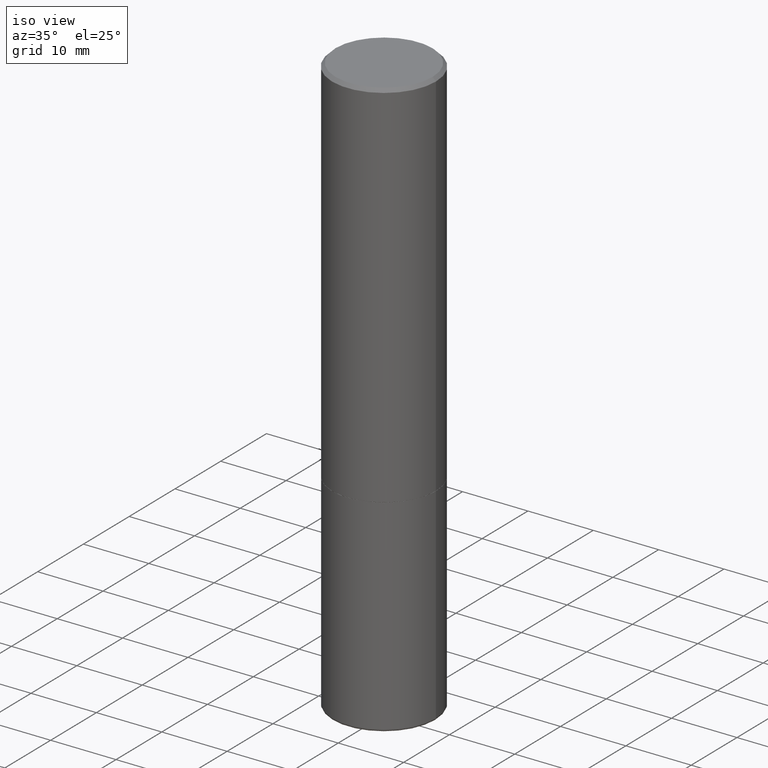
[diagram: clean part render]
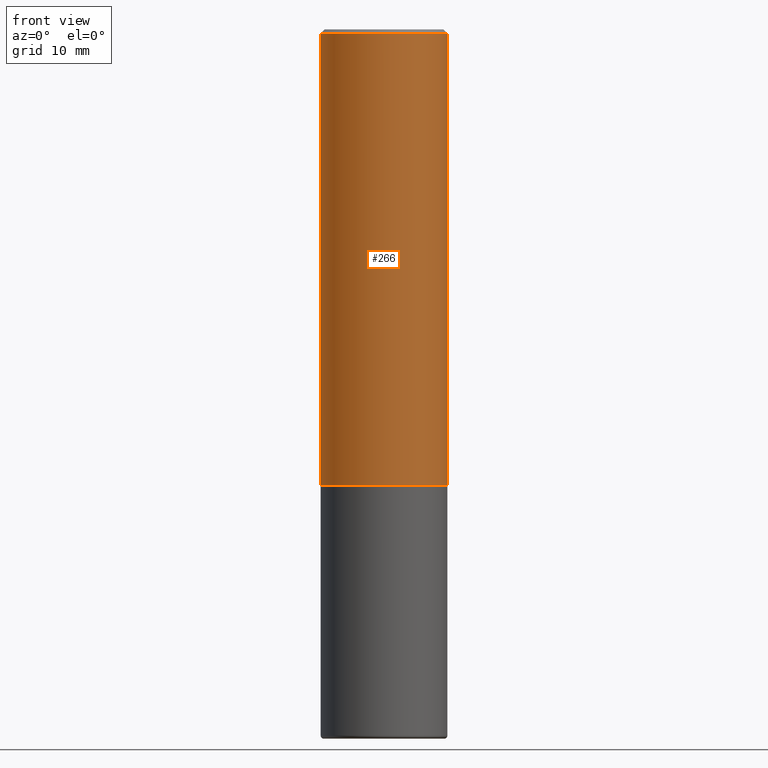
[diagram: tour spotlight — one face highlighted and labeled with its STEP entity id]
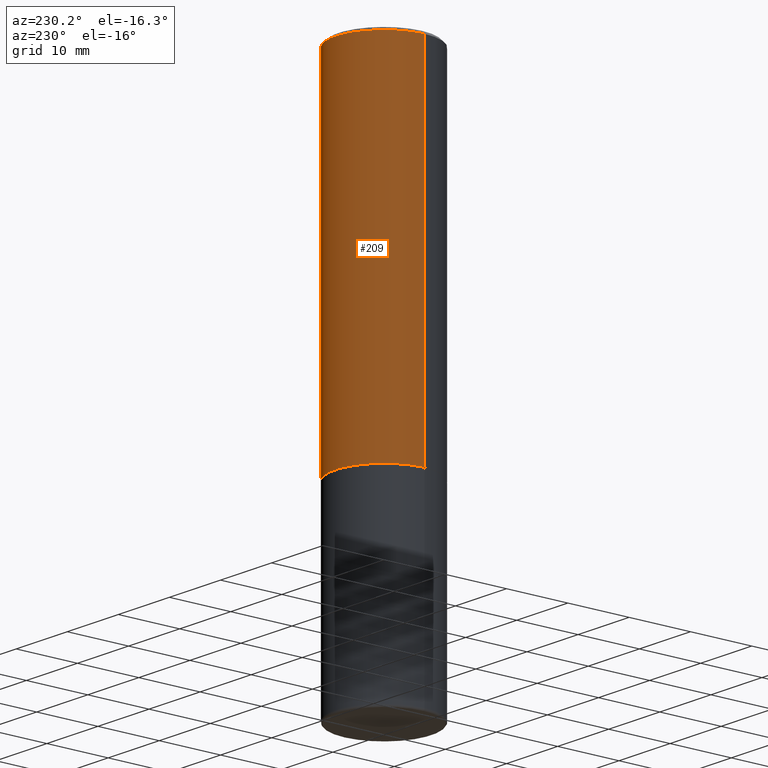
[diagram: tour spotlight — one face highlighted and labeled with its STEP entity id]
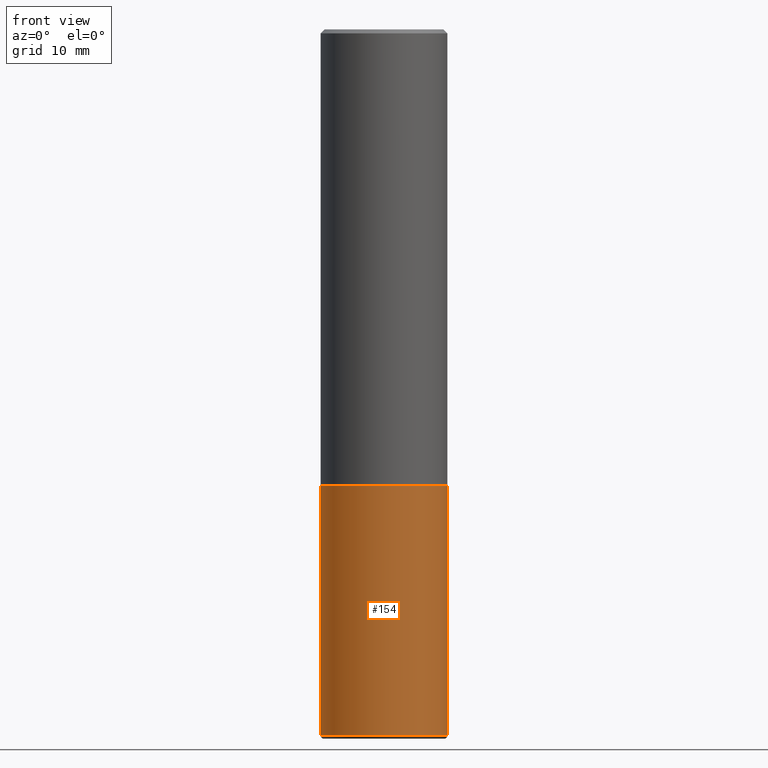
[diagram: tour spotlight — one face highlighted and labeled with its STEP entity id]
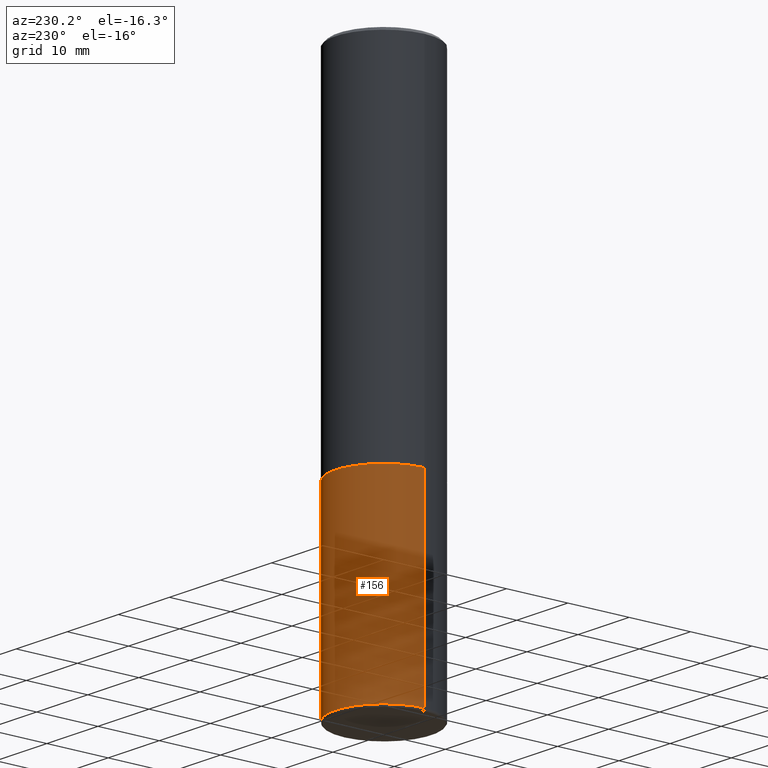
[diagram: tour spotlight — one face highlighted and labeled with its STEP entity id]
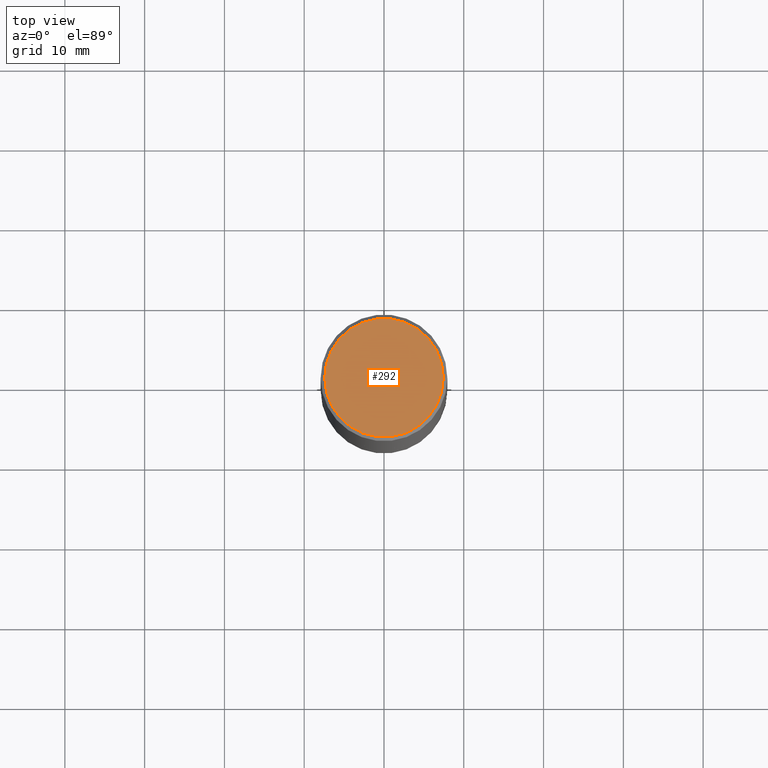
[diagram: tour spotlight — one face highlighted and labeled with its STEP entity id]
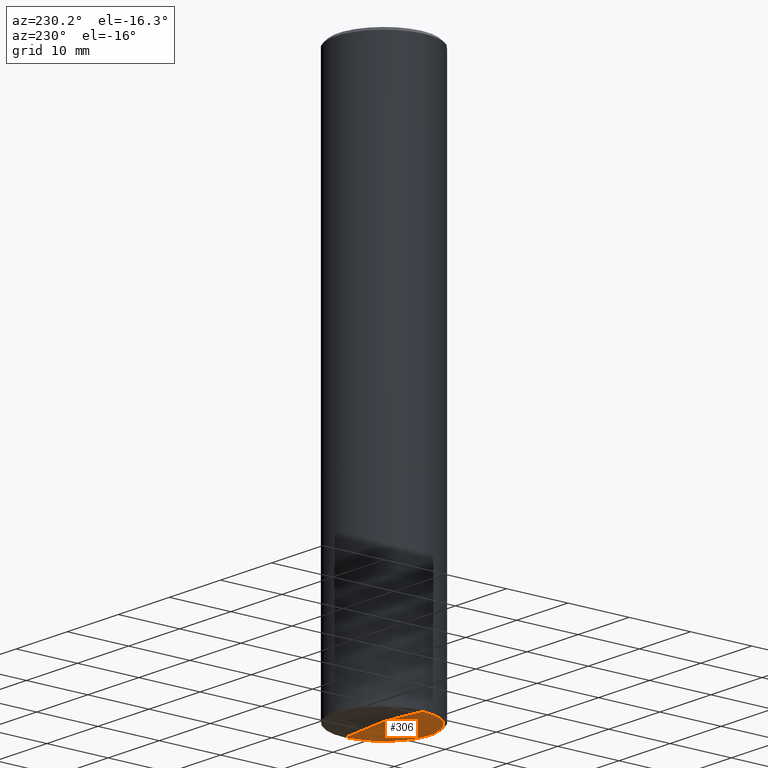
[diagram: tour spotlight — one face highlighted and labeled with its STEP entity id]
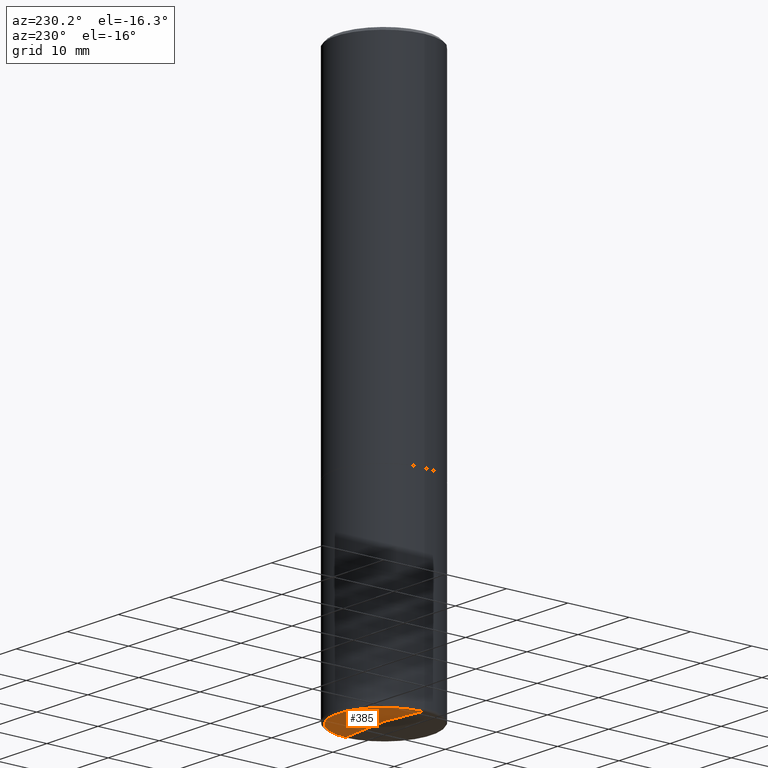
[diagram: tour spotlight — one face highlighted and labeled with its STEP entity id]
A machine part: a face-by-face anatomy tour. The part has 15 B-rep faces; the first image is the clean iso view, then the 7 largest visible faces are spotlighted one at a time (largest first), each with its STEP entity span.

Face 1 — front view, entity #266. In plain terms, the highlighted cylindrical surface (partial cylindrical patch) has radius 7.9375 mm, axis along (-0, 0, 1).
Definition (entity closure, byte-faithful):
#2 = EDGE_CURVE ( 'NONE', #92, #56, #296, .T. ) ;
#3 = CARTESIAN_POINT ( 'NONE',  ( 5.499859345110370619E-29, -7.852341531058232286E-15, -2.248999999999999222 ) ) ;
#12 = CYLINDRICAL_SURFACE ( 'NONE', #93, 0.3124999999999998890 ) ;
#16 = CARTESIAN_POINT ( 'NONE',  ( 0.3124999999999998890, -2.182175836776957558E-15, 1.523805242436229235E-29 ) ) ;
#20 = VECTOR ( 'NONE', #422, 39.37007874015748143 ) ;
#28 = EDGE_CURVE ( 'NONE', #336, #124, #406, .T. ) ;
#44 = CARTESIAN_POINT ( 'NONE',  ( 4.890937612370276662E-31, -6.982962677686296539E-17, -0.02000000000000001776 ) ) ;
#56 = VERTEX_POINT ( 'NONE', #172 ) ;
#66 = EDGE_CURVE ( 'NONE', #336, #92, #242, .T. ) ;
#67 = ORIENTED_EDGE ( 'NONE', *, *, #254, .T. ) ;
#73 = CARTESIAN_POINT ( 'NONE',  ( -0.3124999999999998890, 2.220446049250312292E-15, -1.537167215704657391E-29 ) ) ;
#92 = VERTEX_POINT ( 'NONE', #399 ) ;
#93 = AXIS2_PLACEMENT_3D ( 'NONE', #175, #316, #325 ) ;
#124 = VERTEX_POINT ( 'NONE', #397 ) ;
#126 = ORIENTED_EDGE ( 'NONE', *, *, #2, .F. ) ;
#172 = CARTESIAN_POINT ( 'NONE',  ( 0.3124999999999998335, -2.213735251080465334E-15, -0.02000000000000001776 ) ) ;
#175 = CARTESIAN_POINT ( 'NONE',  ( 0.000000000000000000, 0.000000000000000000, 0.000000000000000000 ) ) ;
#190 = AXIS2_PLACEMENT_3D ( 'NONE', #3, #414, #283 ) ;
#228 = DIRECTION ( 'NONE',  ( -2.445468806185136597E-29, 3.491481338843145583E-15, 1.000000000000000000 ) ) ;
#229 = EDGE_LOOP ( 'NONE', ( #328, #403, #67, #126 ) ) ;
#242 = LINE ( 'NONE', #73, #250 ) ;
#250 = VECTOR ( 'NONE', #436, 39.37007874015748143 ) ;
#254 = EDGE_CURVE ( 'NONE', #124, #56, #362, .T. ) ;
#266 = ADVANCED_FACE ( 'NONE', ( #289 ), #12, .T. ) ;
#283 = DIRECTION ( 'NONE',  ( 1.000000000000000000, -6.982962677686269077E-15, 0.000000000000000000 ) ) ;
#287 = CARTESIAN_POINT ( 'NONE',  ( -0.3125000000000000000, -1.740639529667232739E-15, -2.248999999999999222 ) ) ;
#289 = FACE_OUTER_BOUND ( 'NONE', #229, .T. ) ;
#296 = CIRCLE ( 'NONE', #387, 0.3124999999999998335 ) ;
#316 = DIRECTION ( 'NONE',  ( -2.445468806185136597E-29, 3.491481338843145583E-15, 1.000000000000000000 ) ) ;
#325 = DIRECTION ( 'NONE',  ( 1.000000000000000000, -6.982962677686266711E-15, 4.876176775795935232E-29 ) ) ;
#328 = ORIENTED_EDGE ( 'NONE', *, *, #66, .F. ) ;
#336 = VERTEX_POINT ( 'NONE', #287 ) ;
#354 = DIRECTION ( 'NONE',  ( 1.000000000000000000, -6.982962677686266711E-15, 0.000000000000000000 ) ) ;
#362 = LINE ( 'NONE', #16, #20 ) ;
#387 = AXIS2_PLACEMENT_3D ( 'NONE', #44, #228, #354 ) ;
#397 = CARTESIAN_POINT ( 'NONE',  ( 0.3125000000000000000, -1.003451736783519063E-14, -2.248999999999999222 ) ) ;
#399 = CARTESIAN_POINT ( 'NONE',  ( -0.3124999999999998335, 2.112346210000093866E-15, -0.02000000000000001776 ) ) ;
#403 = ORIENTED_EDGE ( 'NONE', *, *, #28, .T. ) ;
#406 = CIRCLE ( 'NONE', #190, 0.3125000000000000000 ) ;
#414 = DIRECTION ( 'NONE',  ( -2.445468806185136597E-29, 3.491481338843145583E-15, 1.000000000000000000 ) ) ;
#422 = DIRECTION ( 'NONE',  ( -2.445468806185136877E-29, 3.491481338843145188E-15, 1.000000000000000000 ) ) ;
#436 = DIRECTION ( 'NONE',  ( -2.445468806185136877E-29, 3.491481338843145188E-15, 1.000000000000000000 ) ) ;

Face 2 — auxiliary view, entity #209. In plain terms, the highlighted cylindrical surface (partial cylindrical patch) has radius 7.9375 mm, axis along (-0, 0, 1).
Definition (entity closure, byte-faithful):
#16 = CARTESIAN_POINT ( 'NONE',  ( 0.3124999999999998890, -2.182175836776957558E-15, 1.523805242436229235E-29 ) ) ;
#20 = VECTOR ( 'NONE', #422, 39.37007874015748143 ) ;
#56 = VERTEX_POINT ( 'NONE', #172 ) ;
#59 = CYLINDRICAL_SURFACE ( 'NONE', #304, 0.3124999999999998890 ) ;
#66 = EDGE_CURVE ( 'NONE', #336, #92, #242, .T. ) ;
#73 = CARTESIAN_POINT ( 'NONE',  ( -0.3124999999999998890, 2.220446049250312292E-15, -1.537167215704657391E-29 ) ) ;
#91 = AXIS2_PLACEMENT_3D ( 'NONE', #348, #291, #117 ) ;
#92 = VERTEX_POINT ( 'NONE', #399 ) ;
#97 = AXIS2_PLACEMENT_3D ( 'NONE', #310, #231, #188 ) ;
#102 = ORIENTED_EDGE ( 'NONE', *, *, #254, .F. ) ;
#117 = DIRECTION ( 'NONE',  ( 1.000000000000000000, -6.982962677686269077E-15, 0.000000000000000000 ) ) ;
#124 = VERTEX_POINT ( 'NONE', #397 ) ;
#172 = CARTESIAN_POINT ( 'NONE',  ( 0.3124999999999998335, -2.213735251080465334E-15, -0.02000000000000001776 ) ) ;
#187 = DIRECTION ( 'NONE',  ( -2.445468806185136597E-29, 3.491481338843145583E-15, 1.000000000000000000 ) ) ;
#188 = DIRECTION ( 'NONE',  ( 1.000000000000000000, -6.982962677686266711E-15, 0.000000000000000000 ) ) ;
#196 = EDGE_CURVE ( 'NONE', #124, #336, #417, .T. ) ;
#199 = ORIENTED_EDGE ( 'NONE', *, *, #66, .T. ) ;
#201 = EDGE_LOOP ( 'NONE', ( #240, #199, #429, #102 ) ) ;
#207 = CIRCLE ( 'NONE', #97, 0.3124999999999998335 ) ;
#209 = ADVANCED_FACE ( 'NONE', ( #424 ), #59, .T. ) ;
#231 = DIRECTION ( 'NONE',  ( -2.445468806185136597E-29, 3.491481338843145583E-15, 1.000000000000000000 ) ) ;
#240 = ORIENTED_EDGE ( 'NONE', *, *, #196, .T. ) ;
#242 = LINE ( 'NONE', #73, #250 ) ;
#248 = EDGE_CURVE ( 'NONE', #56, #92, #207, .T. ) ;
#250 = VECTOR ( 'NONE', #436, 39.37007874015748143 ) ;
#254 = EDGE_CURVE ( 'NONE', #124, #56, #362, .T. ) ;
#287 = CARTESIAN_POINT ( 'NONE',  ( -0.3125000000000000000, -1.740639529667232739E-15, -2.248999999999999222 ) ) ;
#291 = DIRECTION ( 'NONE',  ( -2.445468806185136597E-29, 3.491481338843145583E-15, 1.000000000000000000 ) ) ;
#304 = AXIS2_PLACEMENT_3D ( 'NONE', #419, #187, #318 ) ;
#310 = CARTESIAN_POINT ( 'NONE',  ( 4.890937612370276662E-31, -6.982962677686296539E-17, -0.02000000000000001776 ) ) ;
#318 = DIRECTION ( 'NONE',  ( 1.000000000000000000, -6.982962677686266711E-15, 4.876176775795935232E-29 ) ) ;
#336 = VERTEX_POINT ( 'NONE', #287 ) ;
#348 = CARTESIAN_POINT ( 'NONE',  ( 5.499859345110370619E-29, -7.852341531058232286E-15, -2.248999999999999222 ) ) ;
#362 = LINE ( 'NONE', #16, #20 ) ;
#397 = CARTESIAN_POINT ( 'NONE',  ( 0.3125000000000000000, -1.003451736783519063E-14, -2.248999999999999222 ) ) ;
#399 = CARTESIAN_POINT ( 'NONE',  ( -0.3124999999999998335, 2.112346210000093866E-15, -0.02000000000000001776 ) ) ;
#417 = CIRCLE ( 'NONE', #91, 0.3125000000000000000 ) ;
#419 = CARTESIAN_POINT ( 'NONE',  ( 0.000000000000000000, 0.000000000000000000, 0.000000000000000000 ) ) ;
#422 = DIRECTION ( 'NONE',  ( -2.445468806185136877E-29, 3.491481338843145188E-15, 1.000000000000000000 ) ) ;
#424 = FACE_OUTER_BOUND ( 'NONE', #201, .T. ) ;
#429 = ORIENTED_EDGE ( 'NONE', *, *, #248, .F. ) ;
#436 = DIRECTION ( 'NONE',  ( -2.445468806185136877E-29, 3.491481338843145188E-15, 1.000000000000000000 ) ) ;

Face 3 — front view, entity #154. In plain terms, the highlighted cylindrical surface (partial cylindrical patch) has radius 7.9375 mm, axis along (-0, 0, 1).
Definition (entity closure, byte-faithful):
#11 = CIRCLE ( 'NONE', #86, 0.3125000000000002776 ) ;
#35 = ORIENTED_EDGE ( 'NONE', *, *, #163, .F. ) ;
#40 = CARTESIAN_POINT ( 'NONE',  ( -0.3125000000000000000, -7.791412577036126966E-15, -2.249999999999999556 ) ) ;
#43 = CYLINDRICAL_SURFACE ( 'NONE', #109, 0.3125000000000001665 ) ;
#55 = DIRECTION ( 'NONE',  ( 1.000000000000000000, -6.982962677686265133E-15, 0.000000000000000000 ) ) ;
#71 = ORIENTED_EDGE ( 'NONE', *, *, #203, .F. ) ;
#86 = AXIS2_PLACEMENT_3D ( 'NONE', #181, #415, #320 ) ;
#94 = DIRECTION ( 'NONE',  ( -2.445468806185136597E-29, 3.491481338843145583E-15, 1.000000000000000000 ) ) ;
#95 = CARTESIAN_POINT ( 'NONE',  ( -0.3125000000000001665, 2.220446049250314264E-15, -1.537167215704658792E-29 ) ) ;
#109 = AXIS2_PLACEMENT_3D ( 'NONE', #183, #113, #319 ) ;
#113 = DIRECTION ( 'NONE',  ( -2.445468806185136597E-29, 3.491481338843145583E-15, 1.000000000000000000 ) ) ;
#125 = ORIENTED_EDGE ( 'NONE', *, *, #294, .T. ) ;
#133 = CARTESIAN_POINT ( 'NONE',  ( 0.3125000000000002776, -1.435006007695276788E-14, -3.485020556978680073 ) ) ;
#141 = CARTESIAN_POINT ( 'NONE',  ( -0.3125000000000002776, -7.791412577036125389E-15, -3.485020556978680073 ) ) ;
#154 = ADVANCED_FACE ( 'NONE', ( #423 ), #43, .T. ) ;
#157 = CIRCLE ( 'NONE', #197, 0.3125000000000000000 ) ;
#158 = VECTOR ( 'NONE', #349, 39.37007874015748143 ) ;
#163 = EDGE_CURVE ( 'NONE', #324, #341, #157, .T. ) ;
#173 = DIRECTION ( 'NONE',  ( -2.445468806185136877E-29, 3.491481338843145188E-15, 1.000000000000000000 ) ) ;
#181 = CARTESIAN_POINT ( 'NONE',  ( 8.522509061005312396E-29, -1.216788424017580638E-14, -3.485020556978680073 ) ) ;
#183 = CARTESIAN_POINT ( 'NONE',  ( 0.000000000000000000, 0.000000000000000000, 0.000000000000000000 ) ) ;
#197 = AXIS2_PLACEMENT_3D ( 'NONE', #262, #94, #55 ) ;
#203 = EDGE_CURVE ( 'NONE', #210, #324, #230, .T. ) ;
#210 = VERTEX_POINT ( 'NONE', #141 ) ;
#230 = LINE ( 'NONE', #95, #331 ) ;
#249 = CARTESIAN_POINT ( 'NONE',  ( 0.3125000000000000000, -1.003800884917403364E-14, -2.249999999999999556 ) ) ;
#261 = CARTESIAN_POINT ( 'NONE',  ( 0.3125000000000001665, -2.182175836776959530E-15, 1.523805242436230636E-29 ) ) ;
#262 = CARTESIAN_POINT ( 'NONE',  ( 5.502304813916556222E-29, -7.855833012397075293E-15, -2.249999999999999556 ) ) ;
#294 = EDGE_CURVE ( 'NONE', #367, #341, #442, .T. ) ;
#302 = EDGE_CURVE ( 'NONE', #210, #367, #11, .T. ) ;
#319 = DIRECTION ( 'NONE',  ( 1.000000000000000000, -6.982962677686266711E-15, 4.876176775795935232E-29 ) ) ;
#320 = DIRECTION ( 'NONE',  ( 1.000000000000000000, -6.982962677686269077E-15, 0.000000000000000000 ) ) ;
#324 = VERTEX_POINT ( 'NONE', #40 ) ;
#331 = VECTOR ( 'NONE', #173, 39.37007874015748143 ) ;
#341 = VERTEX_POINT ( 'NONE', #249 ) ;
#349 = DIRECTION ( 'NONE',  ( -2.445468806185136877E-29, 3.491481338843145188E-15, 1.000000000000000000 ) ) ;
#367 = VERTEX_POINT ( 'NONE', #133 ) ;
#372 = ORIENTED_EDGE ( 'NONE', *, *, #302, .T. ) ;
#415 = DIRECTION ( 'NONE',  ( -2.445468806185136597E-29, 3.491481338843145583E-15, 1.000000000000000000 ) ) ;
#423 = FACE_OUTER_BOUND ( 'NONE', #435, .T. ) ;
#435 = EDGE_LOOP ( 'NONE', ( #71, #372, #125, #35 ) ) ;
#442 = LINE ( 'NONE', #261, #158 ) ;

Face 4 — auxiliary view, entity #156. In plain terms, the highlighted cylindrical surface (partial cylindrical patch) has radius 7.9375 mm, axis along (-0, 0, 1).
Definition (entity closure, byte-faithful):
#40 = CARTESIAN_POINT ( 'NONE',  ( -0.3125000000000000000, -7.791412577036126966E-15, -2.249999999999999556 ) ) ;
#68 = DIRECTION ( 'NONE',  ( -2.445468806185136597E-29, 3.491481338843145583E-15, 1.000000000000000000 ) ) ;
#83 = DIRECTION ( 'NONE',  ( -2.445468806185136597E-29, 3.491481338843145583E-15, 1.000000000000000000 ) ) ;
#87 = ORIENTED_EDGE ( 'NONE', *, *, #294, .F. ) ;
#95 = CARTESIAN_POINT ( 'NONE',  ( -0.3125000000000001665, 2.220446049250314264E-15, -1.537167215704658792E-29 ) ) ;
#133 = CARTESIAN_POINT ( 'NONE',  ( 0.3125000000000002776, -1.435006007695276788E-14, -3.485020556978680073 ) ) ;
#141 = CARTESIAN_POINT ( 'NONE',  ( -0.3125000000000002776, -7.791412577036125389E-15, -3.485020556978680073 ) ) ;
#146 = CARTESIAN_POINT ( 'NONE',  ( 0.000000000000000000, 0.000000000000000000, 0.000000000000000000 ) ) ;
#156 = ADVANCED_FACE ( 'NONE', ( #359 ), #390, .T. ) ;
#158 = VECTOR ( 'NONE', #349, 39.37007874015748143 ) ;
#173 = DIRECTION ( 'NONE',  ( -2.445468806185136877E-29, 3.491481338843145188E-15, 1.000000000000000000 ) ) ;
#198 = AXIS2_PLACEMENT_3D ( 'NONE', #263, #68, #332 ) ;
#203 = EDGE_CURVE ( 'NONE', #210, #324, #230, .T. ) ;
#210 = VERTEX_POINT ( 'NONE', #141 ) ;
#230 = LINE ( 'NONE', #95, #331 ) ;
#235 = EDGE_CURVE ( 'NONE', #367, #210, #239, .T. ) ;
#239 = CIRCLE ( 'NONE', #317, 0.3125000000000002776 ) ;
#249 = CARTESIAN_POINT ( 'NONE',  ( 0.3125000000000000000, -1.003800884917403364E-14, -2.249999999999999556 ) ) ;
#253 = DIRECTION ( 'NONE',  ( -2.445468806185136597E-29, 3.491481338843145583E-15, 1.000000000000000000 ) ) ;
#261 = CARTESIAN_POINT ( 'NONE',  ( 0.3125000000000001665, -2.182175836776959530E-15, 1.523805242436230636E-29 ) ) ;
#263 = CARTESIAN_POINT ( 'NONE',  ( 5.502304813916556222E-29, -7.855833012397075293E-15, -2.249999999999999556 ) ) ;
#275 = AXIS2_PLACEMENT_3D ( 'NONE', #146, #253, #427 ) ;
#285 = CIRCLE ( 'NONE', #198, 0.3125000000000000000 ) ;
#294 = EDGE_CURVE ( 'NONE', #367, #341, #442, .T. ) ;
#317 = AXIS2_PLACEMENT_3D ( 'NONE', #410, #83, #346 ) ;
#324 = VERTEX_POINT ( 'NONE', #40 ) ;
#331 = VECTOR ( 'NONE', #173, 39.37007874015748143 ) ;
#332 = DIRECTION ( 'NONE',  ( 1.000000000000000000, -6.982962677686265133E-15, 0.000000000000000000 ) ) ;
#335 = ORIENTED_EDGE ( 'NONE', *, *, #437, .F. ) ;
#341 = VERTEX_POINT ( 'NONE', #249 ) ;
#346 = DIRECTION ( 'NONE',  ( 1.000000000000000000, -6.982962677686269077E-15, 0.000000000000000000 ) ) ;
#349 = DIRECTION ( 'NONE',  ( -2.445468806185136877E-29, 3.491481338843145188E-15, 1.000000000000000000 ) ) ;
#359 = FACE_OUTER_BOUND ( 'NONE', #369, .T. ) ;
#367 = VERTEX_POINT ( 'NONE', #133 ) ;
#369 = EDGE_LOOP ( 'NONE', ( #401, #439, #335, #87 ) ) ;
#390 = CYLINDRICAL_SURFACE ( 'NONE', #275, 0.3125000000000001665 ) ;
#401 = ORIENTED_EDGE ( 'NONE', *, *, #235, .T. ) ;
#410 = CARTESIAN_POINT ( 'NONE',  ( 8.522509061005312396E-29, -1.216788424017580638E-14, -3.485020556978680073 ) ) ;
#427 = DIRECTION ( 'NONE',  ( 1.000000000000000000, -6.982962677686266711E-15, 4.876176775795935232E-29 ) ) ;
#437 = EDGE_CURVE ( 'NONE', #341, #324, #285, .T. ) ;
#439 = ORIENTED_EDGE ( 'NONE', *, *, #203, .T. ) ;
#442 = LINE ( 'NONE', #261, #158 ) ;

Face 5 — top view, entity #292. In plain terms, the highlighted planar face has unit normal (0, -0, -1).
Definition (entity closure, byte-faithful):
#24 = CARTESIAN_POINT ( 'NONE',  ( -1.043851414335219820E-46, 1.490343170380447200E-32, 4.268512490100411279E-18 ) ) ;
#25 = EDGE_LOOP ( 'NONE', ( #160, #432 ) ) ;
#82 = DIRECTION ( 'NONE',  ( -2.445468806185136597E-29, 3.491481338843145583E-15, 1.000000000000000000 ) ) ;
#114 = AXIS2_PLACEMENT_3D ( 'NONE', #192, #193, #264 ) ;
#119 = CARTESIAN_POINT ( 'NONE',  ( 0.2924999999999998157, -2.110215457714318748E-15, 4.268512490114932791E-18 ) ) ;
#129 = EDGE_CURVE ( 'NONE', #184, #269, #290, .T. ) ;
#147 = CARTESIAN_POINT ( 'NONE',  ( -0.2924999999999998157, 2.077431396611662611E-15, 4.268512490086005323E-18 ) ) ;
#160 = ORIENTED_EDGE ( 'NONE', *, *, #129, .T. ) ;
#180 = AXIS2_PLACEMENT_3D ( 'NONE', #438, #339, #301 ) ;
#184 = VERTEX_POINT ( 'NONE', #147 ) ;
#192 = CARTESIAN_POINT ( 'NONE',  ( -1.043851414335219820E-46, 1.490343170380447200E-32, 4.268512490100411279E-18 ) ) ;
#193 = DIRECTION ( 'NONE',  ( -2.445468806185136597E-29, 3.491481338843145583E-15, 1.000000000000000000 ) ) ;
#214 = DIRECTION ( 'NONE',  ( 1.000000000000000000, -6.982962677686266711E-15, 4.876067333457692840E-29 ) ) ;
#237 = PLANE ( 'NONE',  #180 ) ;
#244 = AXIS2_PLACEMENT_3D ( 'NONE', #24, #82, #214 ) ;
#264 = DIRECTION ( 'NONE',  ( 1.000000000000000000, -6.982962677686266711E-15, 4.876067333457692840E-29 ) ) ;
#269 = VERTEX_POINT ( 'NONE', #119 ) ;
#290 = CIRCLE ( 'NONE', #114, 0.2924999999999998157 ) ;
#292 = ADVANCED_FACE ( 'NONE', ( #330 ), #237, .F. ) ;
#301 = DIRECTION ( 'NONE',  ( -1.000000000000000000, 6.982962677686265922E-15, -4.876176775795935793E-29 ) ) ;
#322 = EDGE_CURVE ( 'NONE', #269, #184, #407, .T. ) ;
#330 = FACE_OUTER_BOUND ( 'NONE', #25, .T. ) ;
#339 = DIRECTION ( 'NONE',  ( 2.438088387897960049E-29, -3.491481338843145188E-15, -1.000000000000000000 ) ) ;
#407 = CIRCLE ( 'NONE', #244, 0.2924999999999998157 ) ;
#432 = ORIENTED_EDGE ( 'NONE', *, *, #322, .T. ) ;
#438 = CARTESIAN_POINT ( 'NONE',  ( 2.042516583223231356E-15, 0.2924999999999998157, -1.019124035366569212E-15 ) ) ;

Face 6 — auxiliary view, entity #306. In plain terms, the highlighted conical surface has half-angle 87 deg.
Definition (entity closure, byte-faithful):
#8 = VERTEX_POINT ( 'NONE', #379 ) ;
#17 = DIRECTION ( 'NONE',  ( 0.9986295347545742773, -7.033825938271996334E-15, -0.05233595624293597981 ) ) ;
#21 = DIRECTION ( 'NONE',  ( -1.000000000000000000, 6.982962677686266711E-15, 0.000000000000000000 ) ) ;
#49 = LINE ( 'NONE', #323, #344 ) ;
#51 = VECTOR ( 'NONE', #89, 39.37007874015748854 ) ;
#52 = CARTESIAN_POINT ( 'NONE',  ( 8.518435570549975034E-29, -1.216972629788728428E-14, -3.484449827831947566 ) ) ;
#53 = DIRECTION ( 'NONE',  ( 2.445468806185136597E-29, -3.491481338843145583E-15, -1.000000000000000000 ) ) ;
#63 = AXIS2_PLACEMENT_3D ( 'NONE', #218, #258, #90 ) ;
#89 = DIRECTION ( 'NONE',  ( -0.9986295347545742773, 6.790662755453670044E-15, -0.05233595624293597981 ) ) ;
#90 = DIRECTION ( 'NONE',  ( 1.000000000000000000, -6.982962677686265922E-15, 0.000000000000000000 ) ) ;
#143 = ORIENTED_EDGE ( 'NONE', *, *, #145, .F. ) ;
#145 = EDGE_CURVE ( 'NONE', #8, #227, #224, .T. ) ;
#153 = EDGE_LOOP ( 'NONE', ( #409, #365, #143 ) ) ;
#182 = EDGE_CURVE ( 'NONE', #271, #227, #49, .T. ) ;
#218 = CARTESIAN_POINT ( 'NONE',  ( 8.559140821647976968E-29, -1.222018468595100934E-14, -3.500000000000000000 ) ) ;
#224 = CIRCLE ( 'NONE', #63, 0.2967149606563558861 ) ;
#226 = CARTESIAN_POINT ( 'NONE',  ( 1.047994128167879265E-27, -1.496257867800555549E-13, -42.85452856798943344 ) ) ;
#227 = VERTEX_POINT ( 'NONE', #280 ) ;
#252 = CARTESIAN_POINT ( 'NONE',  ( -3.834747876743175782E-18, -1.216589155001045545E-14, -3.484449827831947566 ) ) ;
#258 = DIRECTION ( 'NONE',  ( -2.445468806185136597E-29, 3.491481338843145583E-15, 1.000000000000000000 ) ) ;
#267 = AXIS2_PLACEMENT_3D ( 'NONE', #226, #53, #21 ) ;
#271 = VERTEX_POINT ( 'NONE', #52 ) ;
#280 = CARTESIAN_POINT ( 'NONE',  ( 0.2967149606563558861, -1.429213418212549008E-14, -3.500000000000000000 ) ) ;
#306 = ADVANCED_FACE ( 'NONE', ( #386 ), #374, .F. ) ;
#323 = CARTESIAN_POINT ( 'NONE',  ( 3.834747876913598242E-18, -1.216589155001045545E-14, -3.484449827831947566 ) ) ;
#344 = VECTOR ( 'NONE', #17, 39.37007874015748854 ) ;
#350 = LINE ( 'NONE', #252, #51 ) ;
#361 = EDGE_CURVE ( 'NONE', #271, #8, #350, .T. ) ;
#365 = ORIENTED_EDGE ( 'NONE', *, *, #182, .T. ) ;
#374 = CONICAL_SURFACE ( 'NONE', #267, 751.2258538476803551, 1.518436449235074592 ) ;
#379 = CARTESIAN_POINT ( 'NONE',  ( -0.2967149606563558861, -1.002966813900966153E-14, -3.500000000000000000 ) ) ;
#386 = FACE_OUTER_BOUND ( 'NONE', #153, .T. ) ;
#409 = ORIENTED_EDGE ( 'NONE', *, *, #361, .F. ) ;

Face 7 — auxiliary view, entity #385. In plain terms, the highlighted conical surface has half-angle 87 deg.
Definition (entity closure, byte-faithful):
#8 = VERTEX_POINT ( 'NONE', #379 ) ;
#17 = DIRECTION ( 'NONE',  ( 0.9986295347545742773, -7.033825938271996334E-15, -0.05233595624293597981 ) ) ;
#19 = DIRECTION ( 'NONE',  ( -1.000000000000000000, 6.982962677686266711E-15, 0.000000000000000000 ) ) ;
#27 = CONICAL_SURFACE ( 'NONE', #270, 751.2258538476803551, 1.518436449235074592 ) ;
#49 = LINE ( 'NONE', #323, #344 ) ;
#51 = VECTOR ( 'NONE', #89, 39.37007874015748854 ) ;
#52 = CARTESIAN_POINT ( 'NONE',  ( 8.518435570549975034E-29, -1.216972629788728428E-14, -3.484449827831947566 ) ) ;
#89 = DIRECTION ( 'NONE',  ( -0.9986295347545742773, 6.790662755453670044E-15, -0.05233595624293597981 ) ) ;
#105 = FACE_OUTER_BOUND ( 'NONE', #395, .T. ) ;
#112 = DIRECTION ( 'NONE',  ( 1.000000000000000000, -6.982962677686265922E-15, 0.000000000000000000 ) ) ;
#122 = CIRCLE ( 'NONE', #327, 0.2967149606563558861 ) ;
#182 = EDGE_CURVE ( 'NONE', #271, #227, #49, .T. ) ;
#191 = DIRECTION ( 'NONE',  ( 2.445468806185136597E-29, -3.491481338843145583E-15, -1.000000000000000000 ) ) ;
#220 = DIRECTION ( 'NONE',  ( -2.445468806185136597E-29, 3.491481338843145583E-15, 1.000000000000000000 ) ) ;
#227 = VERTEX_POINT ( 'NONE', #280 ) ;
#252 = CARTESIAN_POINT ( 'NONE',  ( -3.834747876743175782E-18, -1.216589155001045545E-14, -3.484449827831947566 ) ) ;
#256 = ORIENTED_EDGE ( 'NONE', *, *, #357, .F. ) ;
#268 = ORIENTED_EDGE ( 'NONE', *, *, #361, .T. ) ;
#270 = AXIS2_PLACEMENT_3D ( 'NONE', #378, #191, #19 ) ;
#271 = VERTEX_POINT ( 'NONE', #52 ) ;
#280 = CARTESIAN_POINT ( 'NONE',  ( 0.2967149606563558861, -1.429213418212549008E-14, -3.500000000000000000 ) ) ;
#323 = CARTESIAN_POINT ( 'NONE',  ( 3.834747876913598242E-18, -1.216589155001045545E-14, -3.484449827831947566 ) ) ;
#327 = AXIS2_PLACEMENT_3D ( 'NONE', #421, #220, #112 ) ;
#334 = ORIENTED_EDGE ( 'NONE', *, *, #182, .F. ) ;
#344 = VECTOR ( 'NONE', #17, 39.37007874015748854 ) ;
#350 = LINE ( 'NONE', #252, #51 ) ;
#357 = EDGE_CURVE ( 'NONE', #227, #8, #122, .T. ) ;
#361 = EDGE_CURVE ( 'NONE', #271, #8, #350, .T. ) ;
#378 = CARTESIAN_POINT ( 'NONE',  ( 1.047994128167879265E-27, -1.496257867800555549E-13, -42.85452856798943344 ) ) ;
#379 = CARTESIAN_POINT ( 'NONE',  ( -0.2967149606563558861, -1.002966813900966153E-14, -3.500000000000000000 ) ) ;
#385 = ADVANCED_FACE ( 'NONE', ( #105 ), #27, .F. ) ;
#395 = EDGE_LOOP ( 'NONE', ( #334, #268, #256 ) ) ;
#421 = CARTESIAN_POINT ( 'NONE',  ( 8.559140821647976968E-29, -1.222018468595100934E-14, -3.500000000000000000 ) ) ;